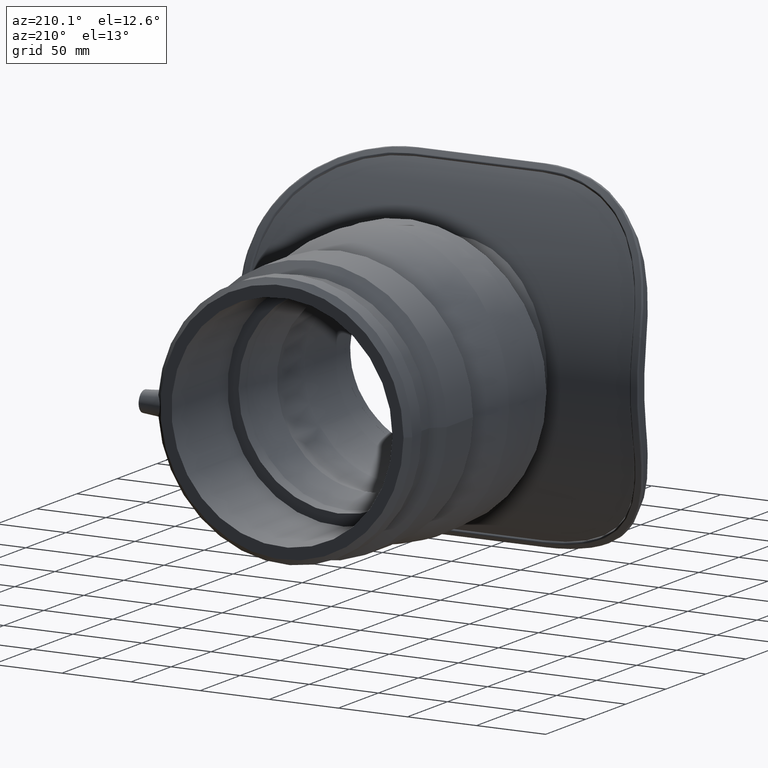
[diagram: clean part render]
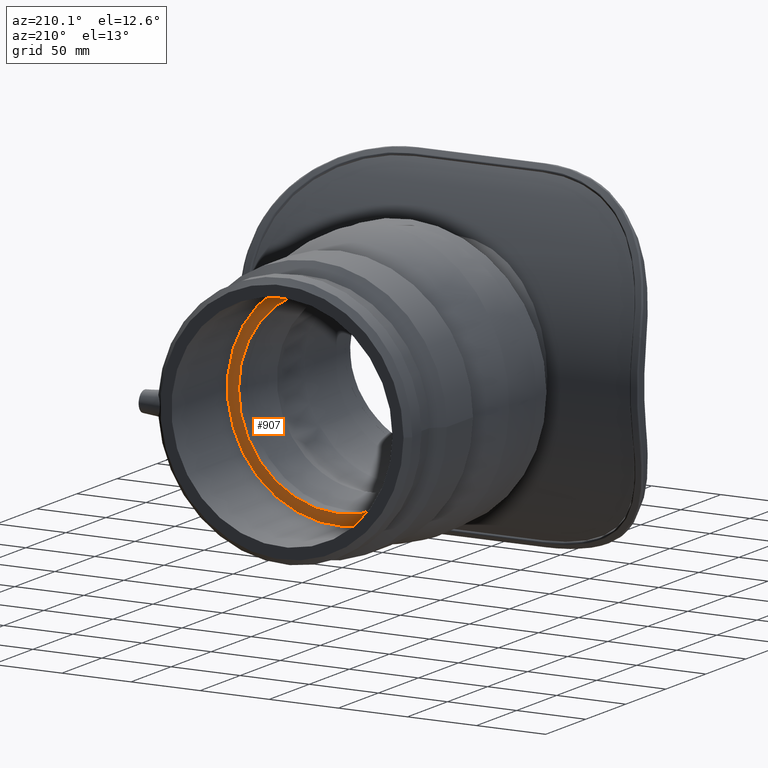
[diagram: same view with one face highlighted and labeled with its STEP entity id]
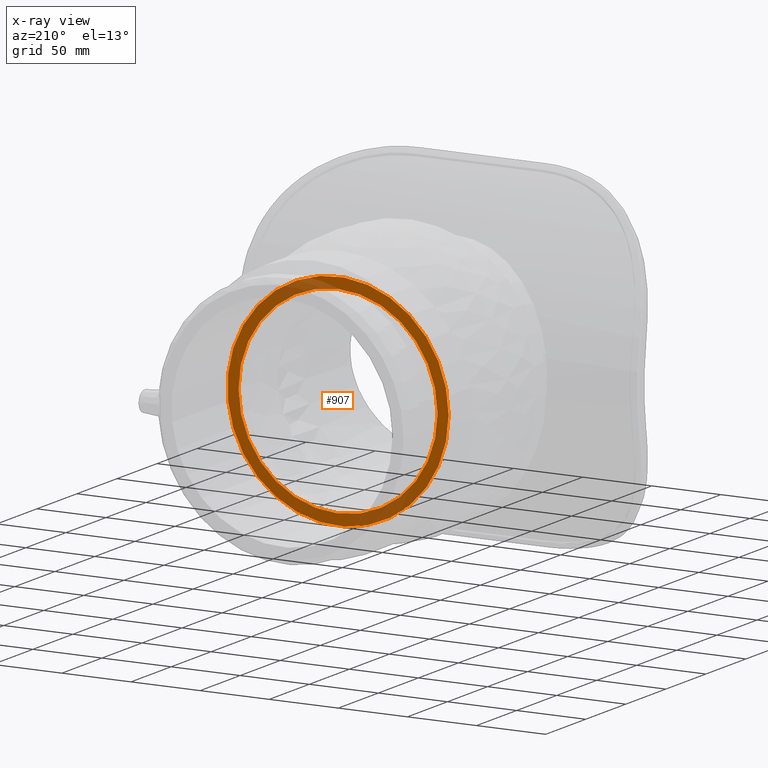
[diagram: x-ray of the same camera — body ghosted, the highlighted face saturated]
A machine part, auxiliary view. The second image highlights one B-rep face of the part: STEP entity #907.
The next image is the same camera in x-ray: the body ghosted, the highlighted face saturated — about 16% of this face is hidden behind the body in this view.
In plain terms, the highlighted planar face has unit normal (0, 1, 0).
Its self-contained STEP definition (entity closure, byte-faithful):
#152=FACE_BOUND('',#302,.T.);
#214=FACE_OUTER_BOUND('',#301,.T.);
#301=EDGE_LOOP('',(#674));
#302=EDGE_LOOP('',(#675));
#384=CIRCLE('',#999,80.);
#385=CIRCLE('',#1000,72.);
#449=VERTEX_POINT('',#1645);
#450=VERTEX_POINT('',#1647);
#536=EDGE_CURVE('',#449,#449,#384,.T.);
#537=EDGE_CURVE('',#450,#450,#385,.T.);
#674=ORIENTED_EDGE('',*,*,#536,.T.);
#675=ORIENTED_EDGE('',*,*,#537,.F.);
#876=PLANE('',#998);
#907=ADVANCED_FACE('',(#214,#152),#876,.T.);
#998=AXIS2_PLACEMENT_3D('',#1644,#1157,#1158);
#999=AXIS2_PLACEMENT_3D('',#1646,#1159,#1160);
#1000=AXIS2_PLACEMENT_3D('',#1648,#1161,#1162);
#1157=DIRECTION('center_axis',(0.,1.,0.));
#1158=DIRECTION('ref_axis',(0.,0.,1.));
#1159=DIRECTION('center_axis',(0.,1.,0.));
#1160=DIRECTION('ref_axis',(1.,0.,0.));
#1161=DIRECTION('center_axis',(0.,1.,0.));
#1162=DIRECTION('ref_axis',(1.,0.,0.));
#1644=CARTESIAN_POINT('Origin',(-72.,91.6,0.));
#1645=CARTESIAN_POINT('',(-80.,91.6,0.));
#1646=CARTESIAN_POINT('Origin',(0.,91.6,0.));
#1647=CARTESIAN_POINT('',(-72.,91.6,0.));
#1648=CARTESIAN_POINT('Origin',(0.,91.6,0.));